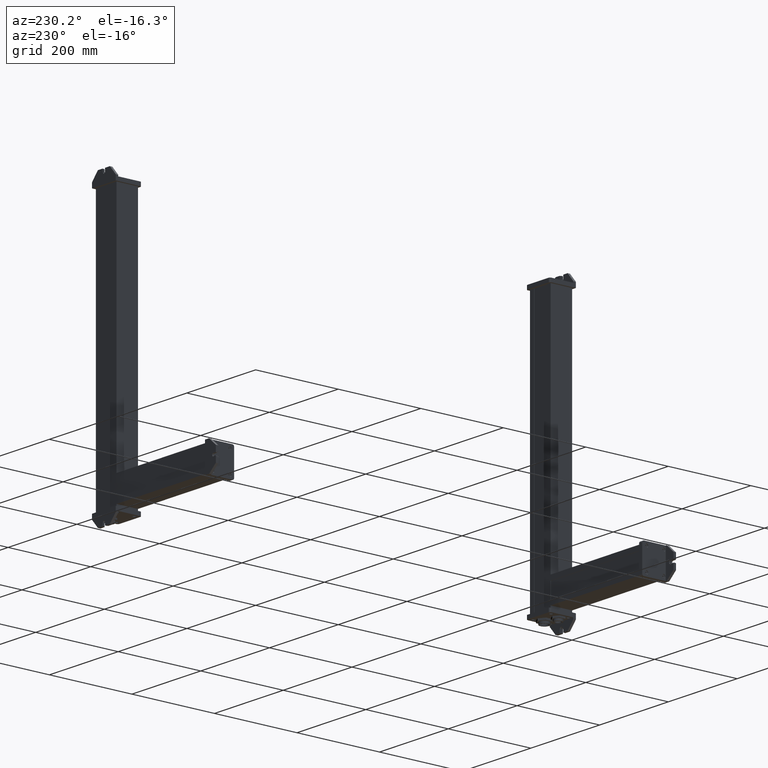
[diagram: clean part render]
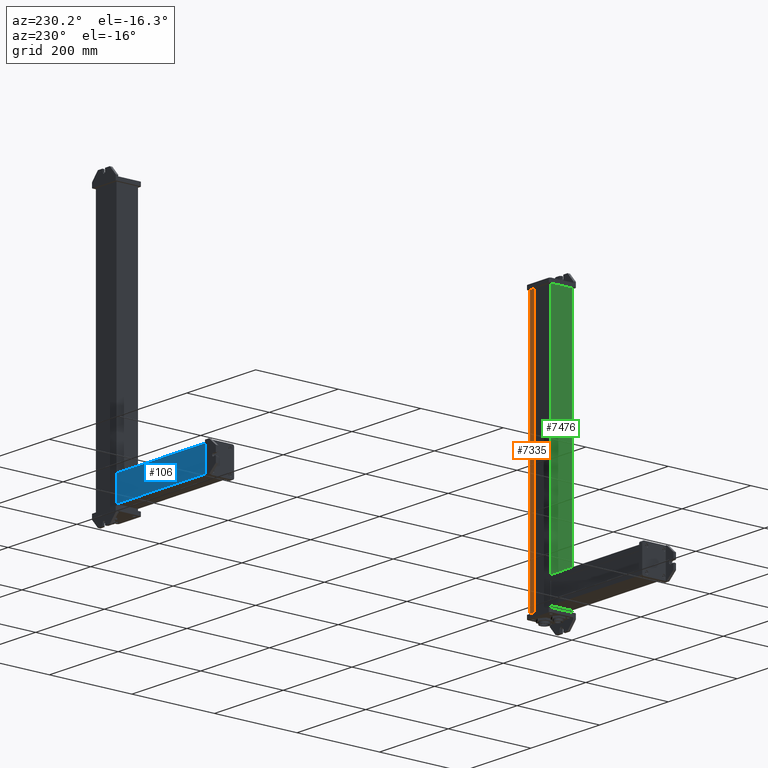
[diagram: same view with three faces highlighted in distinct colors, each labeled with its STEP entity id]
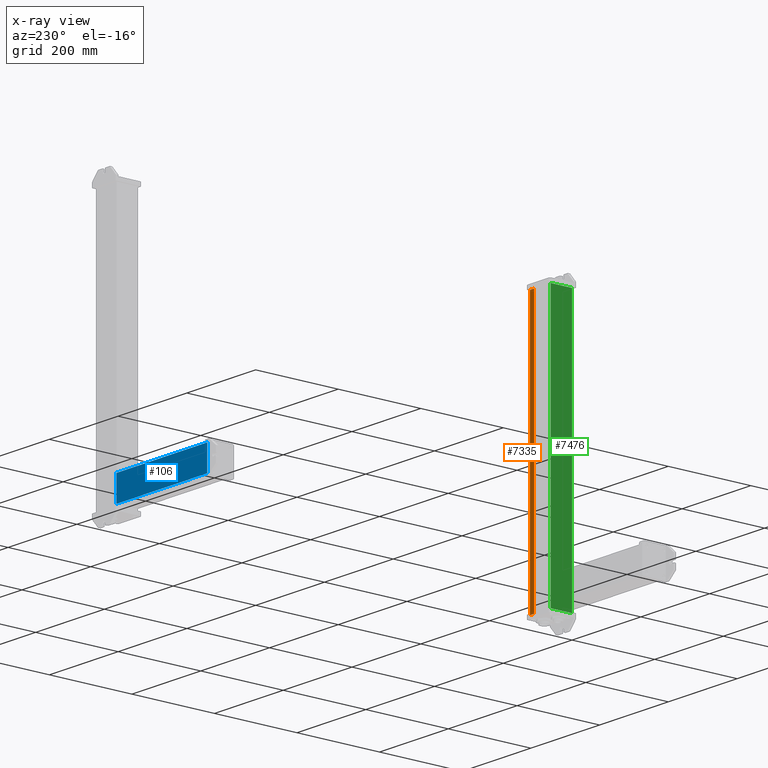
[diagram: x-ray of the same camera — body ghosted, the three highlighted faces saturated]
A machine part, auxiliary view with three faces highlighted in distinct colors.
The next image is the same camera in x-ray (body ghosted, the three faces saturated) — at least one of them is partly hidden behind the body in this view.
Their STEP definitions:

[orange] entity #7335 — the highlighted planar face has unit normal (0, 1, 0).
#7283=CARTESIAN_POINT('Vertex',(60.,52.,0.)) ;
#7286=CARTESIAN_POINT('Line Origine',(60.,52.,315.5)) ;
#7290=CARTESIAN_POINT('Vertex',(60.,52.,631.)) ;
#7305=CARTESIAN_POINT('Axis2P3D Location',(60.,52.,0.)) ;
#7310=CARTESIAN_POINT('Line Origine',(54.,52.,0.)) ;
#7314=CARTESIAN_POINT('Vertex',(48.,52.,0.)) ;
#7317=CARTESIAN_POINT('Line Origine',(48.,52.,315.5)) ;
#7321=CARTESIAN_POINT('Vertex',(48.,52.,631.)) ;
#7324=CARTESIAN_POINT('Line Origine',(54.,52.,631.)) ;
#7287=DIRECTION('Vector Direction',(0.,0.,1.)) ;
#7306=DIRECTION('Axis2P3D Direction',(0.,1.,-0.)) ;
#7307=DIRECTION('Axis2P3D XDirection',(-1.,0.,0.)) ;
#7311=DIRECTION('Vector Direction',(-1.,0.,0.)) ;
#7318=DIRECTION('Vector Direction',(0.,0.,1.)) ;
#7325=DIRECTION('Vector Direction',(-1.,0.,0.)) ;
#7308=AXIS2_PLACEMENT_3D('Plane Axis2P3D',#7305,#7306,#7307) ;
#7330=ORIENTED_EDGE('',*,*,#7292,.F.) ;
#7331=ORIENTED_EDGE('',*,*,#7316,.T.) ;
#7332=ORIENTED_EDGE('',*,*,#7323,.T.) ;
#7333=ORIENTED_EDGE('',*,*,#7328,.F.) ;
#7288=VECTOR('Line Direction',#7287,1.) ;
#7312=VECTOR('Line Direction',#7311,1.) ;
#7319=VECTOR('Line Direction',#7318,1.) ;
#7326=VECTOR('Line Direction',#7325,1.) ;
#7335=ADVANCED_FACE('PartBody',(#7334),#7309,.T.) ;
#7292=EDGE_CURVE('',#7284,#7291,#7289,.T.) ;
#7316=EDGE_CURVE('',#7284,#7315,#7313,.T.) ;
#7323=EDGE_CURVE('',#7315,#7322,#7320,.T.) ;
#7328=EDGE_CURVE('',#7291,#7322,#7327,.T.) ;
#7329=EDGE_LOOP('',(#7330,#7331,#7332,#7333)) ;
#7334=FACE_OUTER_BOUND('',#7329,.T.) ;
#7289=LINE('Line',#7286,#7288) ;
#7313=LINE('Line',#7310,#7312) ;
#7320=LINE('Line',#7317,#7319) ;
#7327=LINE('Line',#7324,#7326) ;
#7309=PLANE('Plane',#7308) ;
#7284=VERTEX_POINT('',#7283) ;
#7291=VERTEX_POINT('',#7290) ;
#7315=VERTEX_POINT('',#7314) ;
#7322=VERTEX_POINT('',#7321) ;

[blue] entity #106 — the highlighted planar face has unit normal (0, 1, -0).
#67=CARTESIAN_POINT('Axis2P3D Location',(0.,0.,0.)) ;
#72=CARTESIAN_POINT('Line Origine',(0.,0.,132.)) ;
#76=CARTESIAN_POINT('Vertex',(0.,0.,0.)) ;
#78=CARTESIAN_POINT('Vertex',(0.,0.,264.)) ;
#81=CARTESIAN_POINT('Line Origine',(30.,0.,0.)) ;
#85=CARTESIAN_POINT('Vertex',(60.,0.,0.)) ;
#88=CARTESIAN_POINT('Line Origine',(60.,0.,132.)) ;
#92=CARTESIAN_POINT('Vertex',(60.,0.,264.)) ;
#95=CARTESIAN_POINT('Line Origine',(30.,0.,264.)) ;
#68=DIRECTION('Axis2P3D Direction',(0.,-1.,0.)) ;
#69=DIRECTION('Axis2P3D XDirection',(1.,0.,0.)) ;
#73=DIRECTION('Vector Direction',(0.,0.,1.)) ;
#82=DIRECTION('Vector Direction',(1.,0.,0.)) ;
#89=DIRECTION('Vector Direction',(0.,0.,1.)) ;
#96=DIRECTION('Vector Direction',(1.,0.,0.)) ;
#70=AXIS2_PLACEMENT_3D('Plane Axis2P3D',#67,#68,#69) ;
#101=ORIENTED_EDGE('',*,*,#80,.F.) ;
#102=ORIENTED_EDGE('',*,*,#87,.T.) ;
#103=ORIENTED_EDGE('',*,*,#94,.T.) ;
#104=ORIENTED_EDGE('',*,*,#99,.F.) ;
#74=VECTOR('Line Direction',#73,1.) ;
#83=VECTOR('Line Direction',#82,1.) ;
#90=VECTOR('Line Direction',#89,1.) ;
#97=VECTOR('Line Direction',#96,1.) ;
#106=ADVANCED_FACE('PartBody',(#105),#71,.T.) ;
#80=EDGE_CURVE('',#77,#79,#75,.T.) ;
#87=EDGE_CURVE('',#77,#86,#84,.T.) ;
#94=EDGE_CURVE('',#86,#93,#91,.T.) ;
#99=EDGE_CURVE('',#79,#93,#98,.T.) ;
#100=EDGE_LOOP('',(#101,#102,#103,#104)) ;
#105=FACE_OUTER_BOUND('',#100,.T.) ;
#75=LINE('Line',#72,#74) ;
#84=LINE('Line',#81,#83) ;
#91=LINE('Line',#88,#90) ;
#98=LINE('Line',#95,#97) ;
#71=PLANE('Plane',#70) ;
#77=VERTEX_POINT('',#76) ;
#79=VERTEX_POINT('',#78) ;
#86=VERTEX_POINT('',#85) ;
#93=VERTEX_POINT('',#92) ;

[green] entity #7476 — the highlighted planar face has unit normal (-1, 0, 0).
#7239=CARTESIAN_POINT('Line Origine',(0.,0.,315.5)) ;
#7243=CARTESIAN_POINT('Vertex',(0.,0.,0.)) ;
#7245=CARTESIAN_POINT('Vertex',(0.,0.,631.)) ;
#7433=CARTESIAN_POINT('Vertex',(3.5527136788E-015,52.,0.)) ;
#7436=CARTESIAN_POINT('Line Origine',(7.1054273576E-015,52.,315.5)) ;
#7440=CARTESIAN_POINT('Vertex',(3.5527136788E-015,52.,631.)) ;
#7455=CARTESIAN_POINT('Axis2P3D Location',(0.,52.,0.)) ;
#7460=CARTESIAN_POINT('Line Origine',(0.,26.,0.)) ;
#7465=CARTESIAN_POINT('Line Origine',(0.,26.,631.)) ;
#7240=DIRECTION('Vector Direction',(0.,0.,1.)) ;
#7437=DIRECTION('Vector Direction',(0.,0.,1.)) ;
#7456=DIRECTION('Axis2P3D Direction',(-1.,0.,0.)) ;
#7457=DIRECTION('Axis2P3D XDirection',(0.,-1.,0.)) ;
#7461=DIRECTION('Vector Direction',(0.,-1.,0.)) ;
#7466=DIRECTION('Vector Direction',(0.,-1.,0.)) ;
#7458=AXIS2_PLACEMENT_3D('Plane Axis2P3D',#7455,#7456,#7457) ;
#7471=ORIENTED_EDGE('',*,*,#7442,.F.) ;
#7472=ORIENTED_EDGE('',*,*,#7464,.T.) ;
#7473=ORIENTED_EDGE('',*,*,#7247,.T.) ;
#7474=ORIENTED_EDGE('',*,*,#7469,.F.) ;
#7241=VECTOR('Line Direction',#7240,1.) ;
#7438=VECTOR('Line Direction',#7437,1.) ;
#7462=VECTOR('Line Direction',#7461,1.) ;
#7467=VECTOR('Line Direction',#7466,1.) ;
#7476=ADVANCED_FACE('PartBody',(#7475),#7459,.T.) ;
#7247=EDGE_CURVE('',#7244,#7246,#7242,.T.) ;
#7442=EDGE_CURVE('',#7434,#7441,#7439,.T.) ;
#7464=EDGE_CURVE('',#7434,#7244,#7463,.T.) ;
#7469=EDGE_CURVE('',#7441,#7246,#7468,.T.) ;
#7470=EDGE_LOOP('',(#7471,#7472,#7473,#7474)) ;
#7475=FACE_OUTER_BOUND('',#7470,.T.) ;
#7242=LINE('Line',#7239,#7241) ;
#7439=LINE('Line',#7436,#7438) ;
#7463=LINE('Line',#7460,#7462) ;
#7468=LINE('Line',#7465,#7467) ;
#7459=PLANE('Plane',#7458) ;
#7244=VERTEX_POINT('',#7243) ;
#7246=VERTEX_POINT('',#7245) ;
#7434=VERTEX_POINT('',#7433) ;
#7441=VERTEX_POINT('',#7440) ;